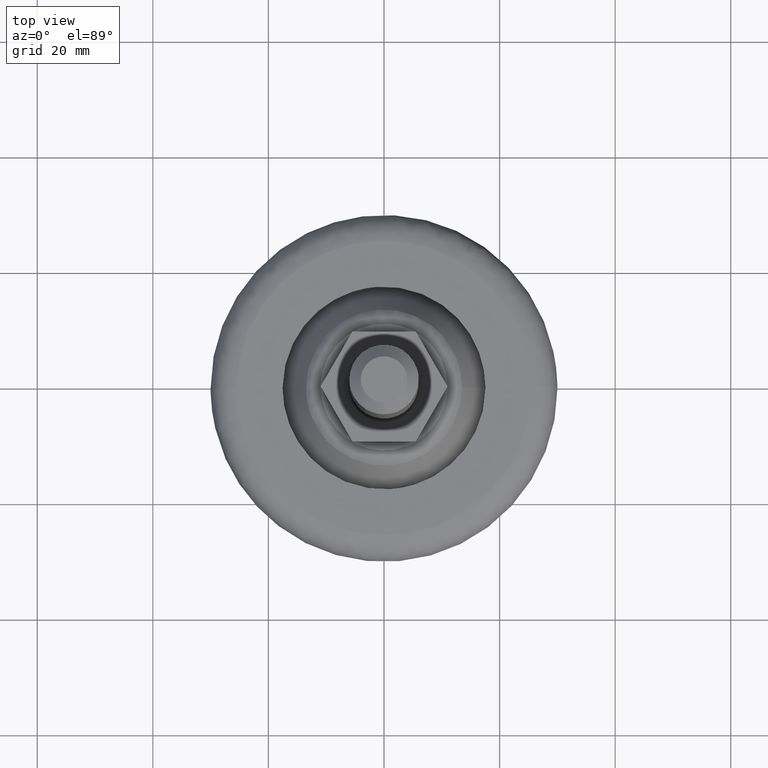
[diagram: clean part render]
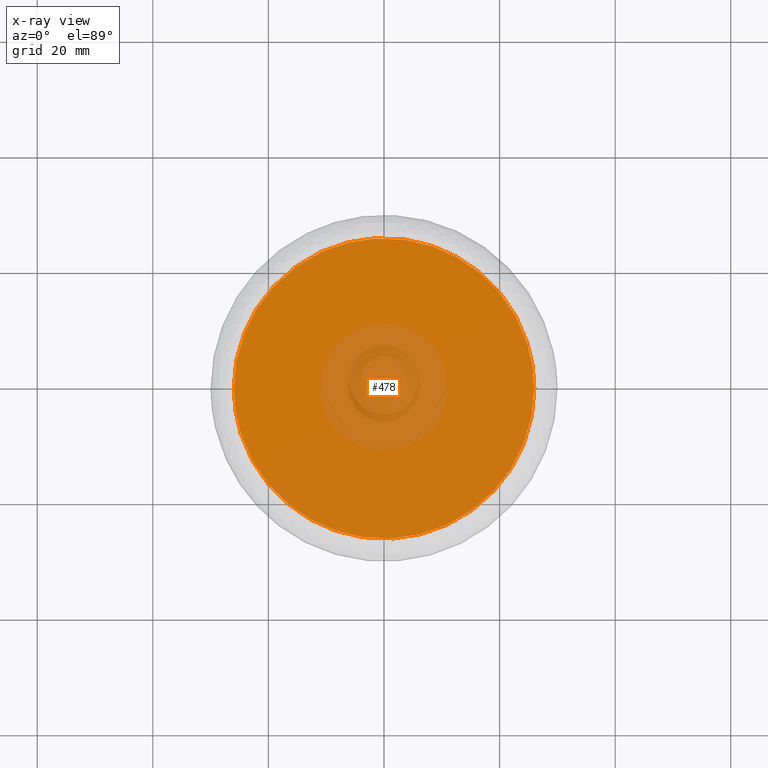
[diagram: x-ray — body ghosted, one internal face saturated and labeled with its STEP entity id]
A machine part, top view, then the same camera in x-ray: the body is ghosted and one INTERNAL B-rep face — a face not visible from any outside direction — is saturated and labeled: STEP entity #478.
In plain terms, the highlighted face is a freeform B-spline surface patch.
Its self-contained STEP definition (entity closure, byte-faithful):
#407=CARTESIAN_POINT('',(28.597399899213912,-28.596760070039000,4.0));
#408=CARTESIAN_POINT('',(-28.597401293962601,-28.596760070039000,4.0));
#409=CARTESIAN_POINT('',(28.597399899213912,28.596759140206540,4.0));
#410=CARTESIAN_POINT('',(-28.597401293962601,28.596759140206540,4.0));
#411=B_SPLINE_SURFACE_WITH_KNOTS('',1,1,((#407,#409),(#408,#410)),.UNSPECIFIED.,.F.,.F.,.U.,(2,2),(2,2),(0.0,57.194801193176502),(0.0,57.193519210245540),.UNSPECIFIED.);
#412=CARTESIAN_POINT('',(1.587257333431949,-25.951505046094031,4.0));
#413=VERTEX_POINT('',#412);
#414=CARTESIAN_POINT('',(-26.0,0.0,4.0));
#415=VERTEX_POINT('',#414);
#416=CARTESIAN_POINT('',(1.587257333431948,-25.951505046094034,4.0));
#417=CARTESIAN_POINT('',(0.794369491944729,-25.999999999999570,4.000000000000001));
#418=CARTESIAN_POINT('',(-2.370078E-014,-25.999999999999581,4.0));
#419=CARTESIAN_POINT('',(-26.000000000000007,-25.999999999999794,4.0));
#420=CARTESIAN_POINT('',(-26.0,0.0,4.0));
#428=(BOUNDED_CURVE()B_SPLINE_CURVE(2,(#416,#417,#418,#419,#420),.UNSPECIFIED.,.F.,.U.)B_SPLINE_CURVE_WITH_KNOTS((3,2,3),(0.739332993454667,0.750000000000000,1.0),.UNSPECIFIED.)CURVE()GEOMETRIC_REPRESENTATION_ITEM()RATIONAL_B_SPLINE_CURVE((0.976072108567965,0.987502824471333,1.0,0.707106781186547,1.0))REPRESENTATION_ITEM(''));
#429=EDGE_CURVE('',#413,#415,#428,.T.);
#430=ORIENTED_EDGE('',*,*,#429,.F.);
#431=CARTESIAN_POINT('',(26.0,0.0,4.0));
#432=VERTEX_POINT('',#431);
#433=CARTESIAN_POINT('',(26.0,0.0,4.0));
#434=CARTESIAN_POINT('',(25.999999999999989,-24.458362172188785,4.000000000000000));
#435=CARTESIAN_POINT('',(1.587257333431948,-25.951505046094034,4.0));
#443=(BOUNDED_CURVE()B_SPLINE_CURVE(2,(#433,#434,#435),.UNSPECIFIED.,.F.,.U.)B_SPLINE_CURVE_WITH_KNOTS((3,3),(0.500000000000000,0.739332993454667),.UNSPECIFIED.)CURVE()GEOMETRIC_REPRESENTATION_ITEM()RATIONAL_B_SPLINE_CURVE((1.0,0.719603956715215,0.976072108567965))REPRESENTATION_ITEM(''));
#444=EDGE_CURVE('',#432,#413,#443,.T.);
#445=ORIENTED_EDGE('',*,*,#444,.F.);
#446=CARTESIAN_POINT('',(-1.587257333431952,25.951505046094031,4.0));
#447=VERTEX_POINT('',#446);
#448=CARTESIAN_POINT('',(-1.587257333431953,25.951505046094038,4.000000000000000));
#449=CARTESIAN_POINT('',(-0.794369491944730,25.999999999999574,4.0));
#450=CARTESIAN_POINT('',(2.456263E-014,25.999999999999581,4.0));
#451=CARTESIAN_POINT('',(26.000000000000007,25.999999999999794,4.0));
#452=CARTESIAN_POINT('',(26.0,0.0,4.0));
#460=(BOUNDED_CURVE()B_SPLINE_CURVE(2,(#448,#449,#450,#451,#452),.UNSPECIFIED.,.F.,.U.)B_SPLINE_CURVE_WITH_KNOTS((3,2,3),(0.239332993454667,0.250000000000000,0.500000000000000),.UNSPECIFIED.)CURVE()GEOMETRIC_REPRESENTATION_ITEM()RATIONAL_B_SPLINE_CURVE((0.976072108567965,0.987502824471333,1.0,0.707106781186547,1.0))REPRESENTATION_ITEM(''));
#461=EDGE_CURVE('',#447,#432,#460,.T.);
#462=ORIENTED_EDGE('',*,*,#461,.F.);
#463=CARTESIAN_POINT('',(-26.0,0.0,4.0));
#464=CARTESIAN_POINT('',(-25.999999999999986,24.458362172188782,4.0));
#465=CARTESIAN_POINT('',(-1.587257333431953,25.951505046094038,4.000000000000000));
#473=(BOUNDED_CURVE()B_SPLINE_CURVE(2,(#463,#464,#465),.UNSPECIFIED.,.F.,.U.)B_SPLINE_CURVE_WITH_KNOTS((3,3),(0.0,0.239332993454667),.UNSPECIFIED.)CURVE()GEOMETRIC_REPRESENTATION_ITEM()RATIONAL_B_SPLINE_CURVE((1.0,0.719603956715215,0.976072108567965))REPRESENTATION_ITEM(''));
#474=EDGE_CURVE('',#415,#447,#473,.T.);
#475=ORIENTED_EDGE('',*,*,#474,.F.);
#476=EDGE_LOOP('',(#430,#445,#462,#475));
#477=FACE_OUTER_BOUND('',#476,.T.);
#478=ADVANCED_FACE('',(#477),#411,.F.);